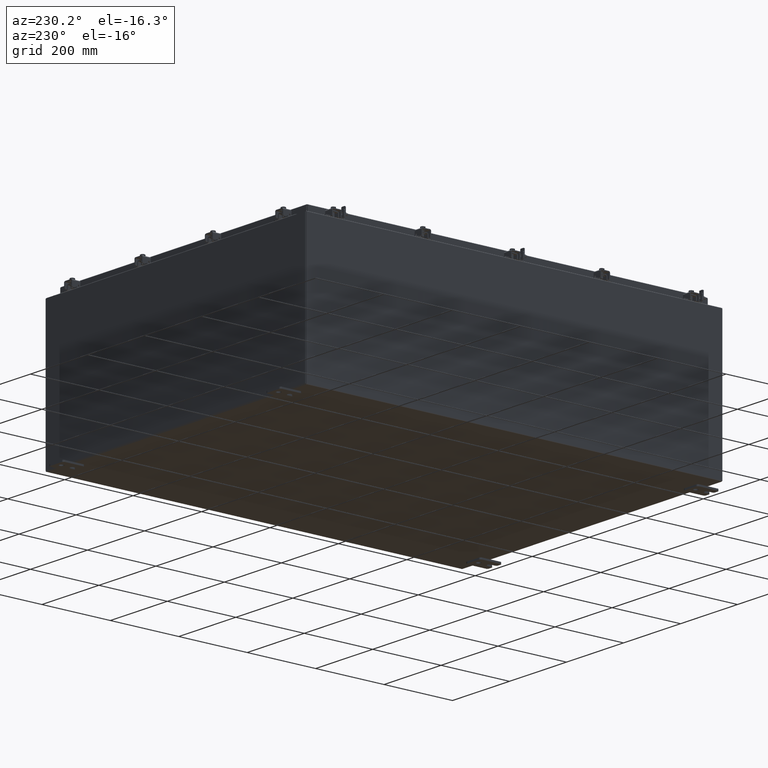
[diagram: clean part render]
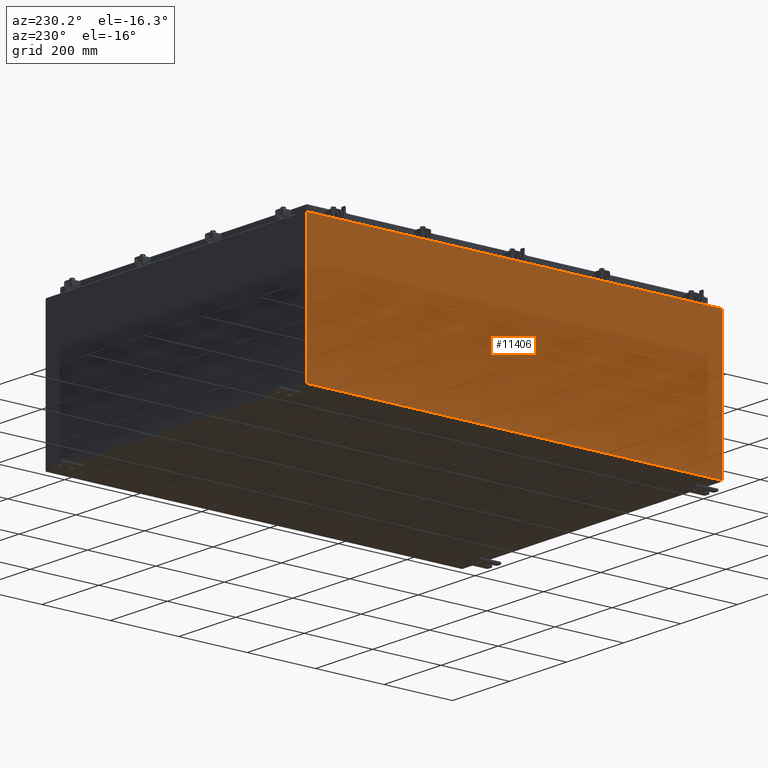
[diagram: same view with one face highlighted and labeled with its STEP entity id]
A machine part, auxiliary view. The second image highlights one B-rep face of the part: STEP entity #11406.
In plain terms, the highlighted planar face has unit normal (1, 0, 0).
Its self-contained STEP definition (entity closure, byte-faithful):
#1777 = CARTESIAN_POINT ( 'NONE',  ( -18.00000000000006000, -23.92529999999998600, 15.83759999999998200 ) ) ;
#1921 = DIRECTION ( 'NONE',  ( 1.000000000000000000, 0.0000000000000000000, 3.430827668758847900E-015 ) ) ;
#1922 = EDGE_CURVE ( 'NONE', #21382, #7945, #9824, .T. ) ;
#1952 = DIRECTION ( 'NONE',  ( 3.430827668758847900E-015, 0.0000000000000000000, -1.000000000000000000 ) ) ;
#2541 = LINE ( 'NONE', #11113, #13092 ) ;
#2802 = EDGE_CURVE ( 'NONE', #15409, #7945, #2541, .T. ) ;
#4085 = CARTESIAN_POINT ( 'NONE',  ( -18.00000000000000400, 23.92529999999998900, -6.228613425554519900E-014 ) ) ;
#5914 = ORIENTED_EDGE ( 'NONE', *, *, #22781, .T. ) ;
#6849 = EDGE_CURVE ( 'NONE', #10786, #21382, #15565, .T. ) ;
#7830 = CARTESIAN_POINT ( 'NONE',  ( -18.00000000000006000, 23.92529999999998900, 15.83759999999999500 ) ) ;
#7945 = VERTEX_POINT ( 'NONE', #25483 ) ;
#9824 = LINE ( 'NONE', #4085, #25293 ) ;
#10786 = VERTEX_POINT ( 'NONE', #1777 ) ;
#10879 = ORIENTED_EDGE ( 'NONE', *, *, #6849, .T. ) ;
#11113 = CARTESIAN_POINT ( 'NONE',  ( -18.00000000000000400, 23.92529999999998900, 0.01300000000000010700 ) ) ;
#11406 = ADVANCED_FACE ( 'NONE', ( #19499 ), #25015, .F. ) ;
#12499 = DIRECTION ( 'NONE',  ( -3.430827668758847900E-015, 0.0000000000000000000, 1.000000000000000000 ) ) ;
#13092 = VECTOR ( 'NONE', #23728, 39.37007874015748100 ) ;
#13760 = ORIENTED_EDGE ( 'NONE', *, *, #1922, .T. ) ;
#14374 = CARTESIAN_POINT ( 'NONE',  ( -18.00000000000006000, -23.92529999999998900, 15.83759999999998200 ) ) ;
#14409 = VECTOR ( 'NONE', #12499, 39.37007874015748100 ) ;
#14535 = CARTESIAN_POINT ( 'NONE',  ( -18.00000000000000400, 0.0000000000000000000, -6.228613425554519900E-014 ) ) ;
#15409 = VERTEX_POINT ( 'NONE', #17536 ) ;
#15500 = EDGE_LOOP ( 'NONE', ( #10879, #13760, #22346, #5914 ) ) ;
#15565 = LINE ( 'NONE', #14374, #26093 ) ;
#16645 = DIRECTION ( 'NONE',  ( 3.430827668758847900E-015, 0.0000000000000000000, -1.000000000000000000 ) ) ;
#17536 = CARTESIAN_POINT ( 'NONE',  ( -18.00000000000000400, -23.92529999999998600, 0.01300000000000010700 ) ) ;
#19499 = FACE_OUTER_BOUND ( 'NONE', #15500, .T. ) ;
#20876 = CARTESIAN_POINT ( 'NONE',  ( -18.00000000000000400, -23.92529999999999600, -6.228613425554519900E-014 ) ) ;
#21382 = VERTEX_POINT ( 'NONE', #7830 ) ;
#22346 = ORIENTED_EDGE ( 'NONE', *, *, #2802, .F. ) ;
#22781 = EDGE_CURVE ( 'NONE', #15409, #10786, #25600, .T. ) ;
#22852 = DIRECTION ( 'NONE',  ( 0.0000000000000000000, 1.000000000000000000, 0.0000000000000000000 ) ) ;
#23728 = DIRECTION ( 'NONE',  ( -0.0000000000000000000, 1.000000000000000000, -0.0000000000000000000 ) ) ;
#25015 = PLANE ( 'NONE',  #26194 ) ;
#25293 = VECTOR ( 'NONE', #1952, 39.37007874015748100 ) ;
#25483 = CARTESIAN_POINT ( 'NONE',  ( -18.00000000000000400, 23.92529999999998900, 0.01300000000000010700 ) ) ;
#25600 = LINE ( 'NONE', #20876, #14409 ) ;
#26093 = VECTOR ( 'NONE', #22852, 39.37007874015748100 ) ;
#26194 = AXIS2_PLACEMENT_3D ( 'NONE', #14535, #1921, #16645 ) ;